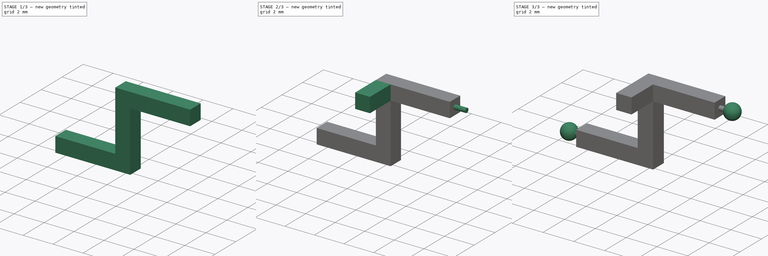
[diagram: build sequence overview — one tinted view per stage of 3, left to right]
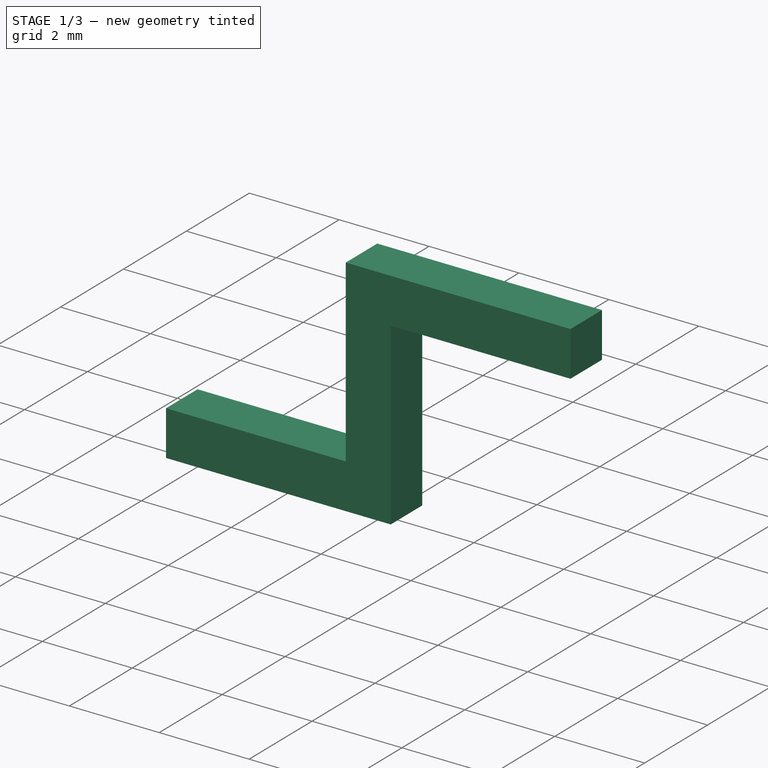
[diagram: stage 1 of 3 — iso view after this stage's code; geometry added in this stage tinted green]
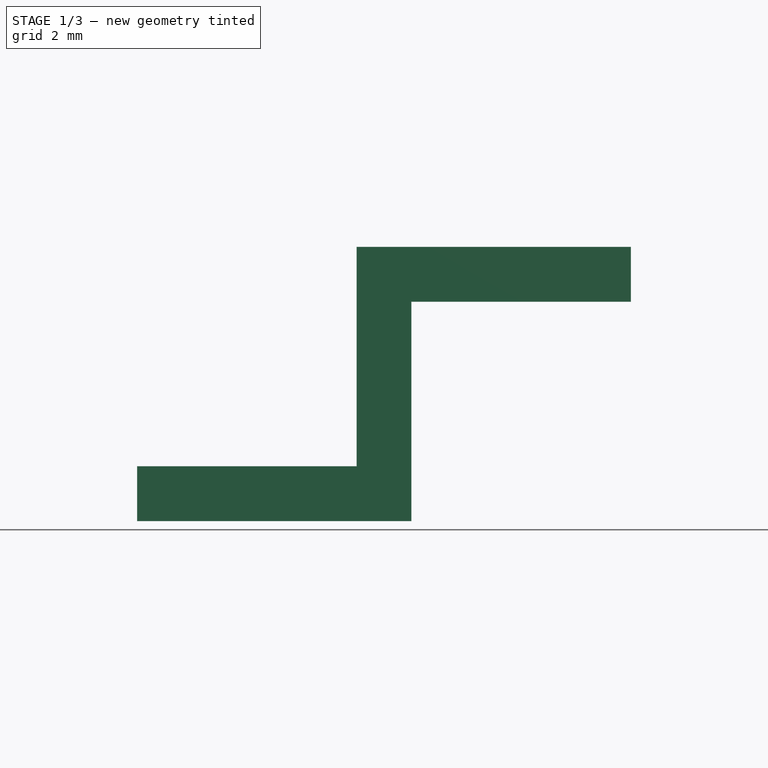
[diagram: stage 1 of 3 — front view after this stage's code; geometry added in this stage tinted green]
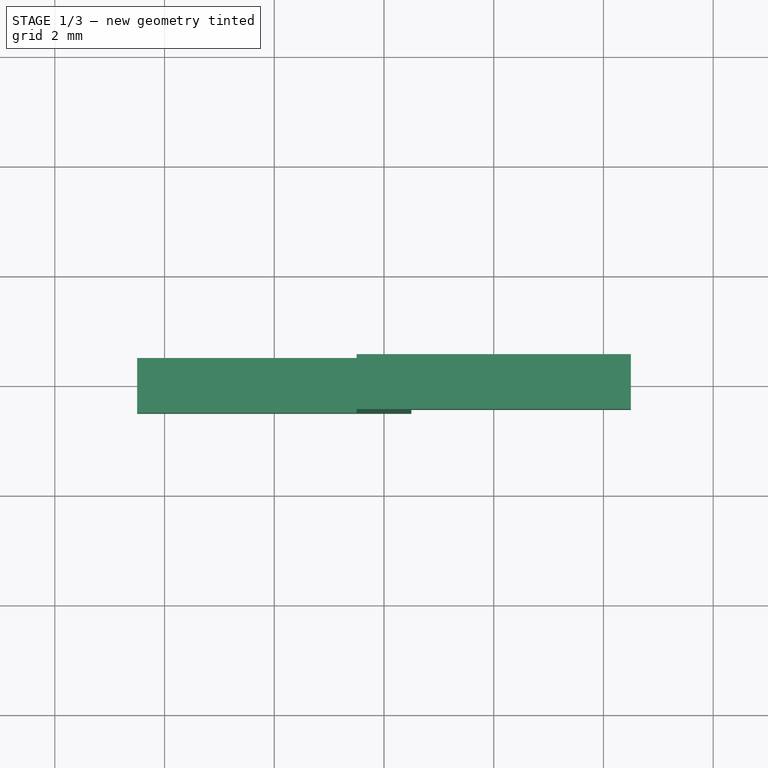
[diagram: stage 1 of 3 — top view after this stage's code; geometry added in this stage tinted green]
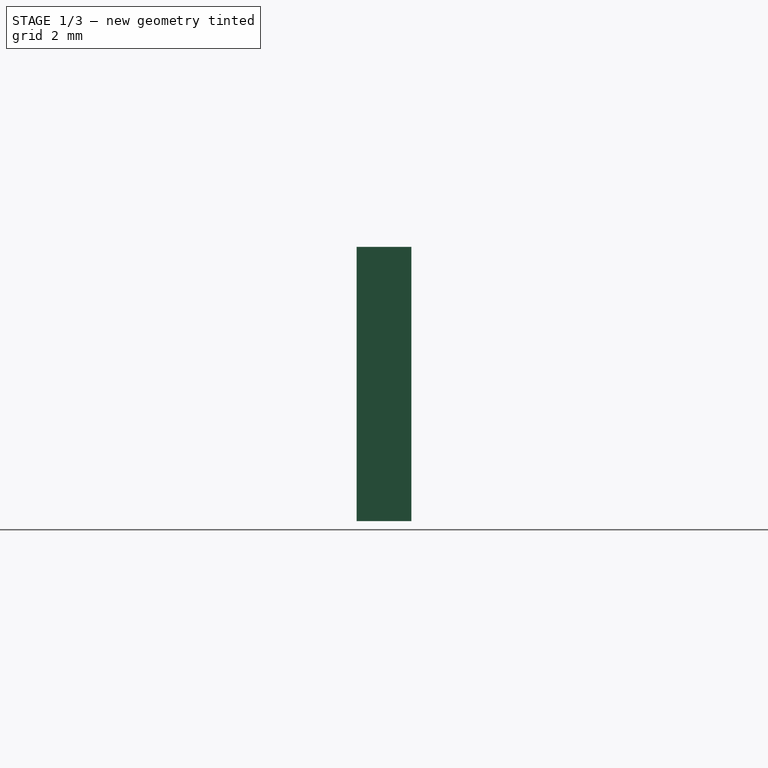
[diagram: stage 1 of 3 — right view after this stage's code; geometry added in this stage tinted green]
FCSTD DOCUMENT  (FreeCAD 0.20R29177 (Git))
Label: ax1
License: All rights reserved
LicenseURL: http://en.wikipedia.org/wiki/All_rights_reserved
objects: Sketcher::SketchObject×8, PartDesign::Pad×4, PartDesign::Revolution×4, PartDesign::Line×2, Spreadsheet::Sheet×1, PartDesign::Plane×1, PartDesign::Body×1
note: 28 computed .brp shape members not serialized (recipe doc carries the construction recipe); baked Part::Feature solids carry a one-line shape summary decoded from their .brp

FEATURE [Spreadsheet::Sheet] Spreadsheet
  cells = A2=Design Parameters; A3=RefLength; B3(RefLength)==1mm; A4=RightArmLength; B4(RightArmLength)==5 * RefLength; A5=LeftArmLength; B5(LeftArmLength)==5 * RefLength; A6=VerticalArmLength; B6(VerticalArmLength)==5 * RefLength; A7=FrontArmLength; B7(FrontArmLength)==3 * RefLength; A8=BeamWidth; B8(BeamWidth)==1 * RefLength; A9=BeamHeight; B9(BeamHeight)==1 * RefLength; A10=LeftArmDatumPlaneZOffset; B10(LeftArmDatumPlaneZOffset)==VerticalArmLength - BeamHeight; A11=BallJointDiam; B11(BallJointDiam)==1 * RefLength; A12=BallJointConnDiam; B12(BallJointConnDiam)==0.3 * RefLength; A13=BallJointConnLength; B13(BallJointConnLength)==0.3 * RefLength; A14=BallJointConnPadLength; B14(BallJointConnPadLength)==BallJointConnLength + 0.5 * BallJointDiam; A15=RightArmBallJointConnXOffset; B15(RightArmBallJointConnXOffset)==RightArmLength - 0.5 * BeamHeight; A16=RightArmBallJointXOffset; B16(RightArmBallJointXOffset)==RightArmLength - 0.5 * BeamHeight + BallJointConnLength + 0.5 * BallJointDiam; A17=LeftArmBallJointConnXOffset; B17(LeftArmBallJointConnXOffset)==LeftArmLength - 0.5 * BeamHeight; A18=LeftArmBallJointXOffset; B18(LeftArmBallJointXOffset)==LeftArmLength - 0.5 * BeamHeight + BallJointConnLength + 0.5 * BallJointDiam; A19=EdgeFilletRadius; B19(EdgeFilletRadius)==0.15 * RefLength; A20=BallJointConnFilletRadius; B20(BallJointConnFilletRadius)==0.1 * RefLength
FEATURE [Sketcher::SketchObject] Sketch  label="RightArmSketch"
  FullyConstrained = true
  MapMode = 5
  Support = -> [XY_Plane]
  expr: Constraints[14] = Spreadsheet.RightArmLength
  expr: Constraints[15] = Spreadsheet.BeamWidth
  expr: Constraints[16] = Spreadsheet.BeamHeight
  sketch-geometry (6):
    g0: LineSegment StartX=0.5 StartY=0.5 StartZ=0 EndX=4.5 EndY=0.5 EndZ=0
    g1: LineSegment StartX=4.5 StartY=0.5 StartZ=0 EndX=4.5 EndY=-0.5 EndZ=0
    g2: LineSegment StartX=4.5 StartY=-0.5 StartZ=0 EndX=0.5 EndY=-0.5 EndZ=0
    g3: LineSegment StartX=-0.5 StartY=0.5 StartZ=0 EndX=0.5 EndY=0.5 EndZ=0
    g4: LineSegment StartX=0.5 StartY=-0.5 StartZ=0 EndX=-0.5 EndY=-0.5 EndZ=0
    g5: LineSegment StartX=-0.5 StartY=-0.5 StartZ=0 EndX=-0.5 EndY=0.5 EndZ=0
  constraints (17):
    c: Coincident(g0,g1)
    c: Coincident(g1,g2)
    c: Horizontal(g0)
    c: Horizontal(g2)
    c: Vertical(g1)
    c: Coincident(g4,g5)
    c: Coincident(g5,g3)
    c: Horizontal(g3)
    c: Horizontal(g4)
    c: Vertical(g5)
    c: Coincident(g3,g0)
    c: Coincident(g4,g2)
    c: Equal(g3,g4)
    c: Symmetric(g3,g2,g-1)
    c: DistanceX(g3,g0) = 5
    c: DistanceY(g1,g1) = 1
    c: DistanceX(g4,g4) = 1
FEATURE [PartDesign::Pad] Pad  label="RightArmPad"
  Direction = (0,0,1)
  Length = 1
  Length2 = 10
  Midplane = true
  Profile = -> Sketch
  ReferenceAxis = -> Sketch [N_Axis]
  Type = 0
  expr: Length = Spreadsheet.BeamHeight
FEATURE [Sketcher::SketchObject] Sketch001  label="VerticalArmSketch"
  FullyConstrained = true
  MapMode = 5
  Placement = pos=(0,0,0) rot=(0.57735,0.57735,0.57735;2.0944rad)
  Support = -> [YZ_Plane]
  expr: Constraints[14] = Spreadsheet.BeamWidth
  expr: Constraints[15] = Spreadsheet.BeamHeight
  expr: Constraints[16] = Spreadsheet.VerticalArmLength
  sketch-geometry (6):
    g0: LineSegment StartX=-0.5 StartY=0.5 StartZ=0 EndX=0.5 EndY=0.5 EndZ=0
    g1: LineSegment StartX=0.5 StartY=0.5 StartZ=0 EndX=0.5 EndY=-0.5 EndZ=0
    g2: LineSegment StartX=-0.5 StartY=-0.5 StartZ=0 EndX=-0.5 EndY=0.5 EndZ=0
    g3: LineSegment StartX=0.5 StartY=-0.5 StartZ=0 EndX=0.5 EndY=-4.5 EndZ=0
    g4: LineSegment StartX=0.5 StartY=-4.5 StartZ=0 EndX=-0.5 EndY=-4.5 EndZ=0
    g5: LineSegment StartX=-0.5 StartY=-4.5 StartZ=0 EndX=-0.5 EndY=-0.5 EndZ=0
  constraints (17):
    c: Coincident(g0,g1)
    c: Coincident(g2,g0)
    c: Horizontal(g0)
    c: Vertical(g1)
    c: Vertical(g2)
    c: Coincident(g3,g4)
    c: Coincident(g4,g5)
    c: Horizontal(g4)
    c: Vertical(g3)
    c: Vertical(g5)
    c: Coincident(g2,g5)
    c: Coincident(g1,g3)
    c: Equal(g2,g1)
    c: Symmetric(g0,g1,g-1)
    c: DistanceX(g0,g0) = 1
    c: DistanceY(g1,g1) = 1
    c: DistanceY(g4,g0) = 5
FEATURE [PartDesign::Pad] Pad001  label="VerticalArmPad"
  BaseFeature = -> Pad
  Direction = (1,-2e-16,3e-16)
  Length = 1
  Length2 = 10
  Midplane = true
  Profile = -> Sketch001
  ReferenceAxis = -> Sketch001 [N_Axis]
  Type = 0
  expr: Length = Spreadsheet.BeamHeight
FEATURE [PartDesign::Plane] DatumPlane  label="LeftArmDatumPlane"
  AttachmentOffset = pos=(0,0,-4) rot=(0,0,1;0rad)
  Length = 60
  MapMode = 5
  Placement = pos=(0,0,-4) rot=(0,0,1;0rad)
  ResizeMode = 0
  Support = -> [XY_Plane]
  Width = 60
  expr: .AttachmentOffset.Base.z = -Spreadsheet.LeftArmDatumPlaneZOffset
FEATURE [Sketcher::SketchObject] Sketch002  label="LeftArmSketch"
  FullyConstrained = true
  MapMode = 5
  Placement = pos=(0,0,-4) rot=(0,0,1;0rad)
  Support = -> [DatumPlane]
  expr: Constraints[14] = Spreadsheet.BeamWidth
  expr: Constraints[15] = Spreadsheet.BeamHeight
  expr: Constraints[16] = Spreadsheet.LeftArmLength
  sketch-geometry (6):
    g0: LineSegment StartX=-4.5 StartY=0.5 StartZ=0 EndX=-0.5 EndY=0.5 EndZ=0
    g1: LineSegment StartX=-0.5 StartY=-0.5 StartZ=0 EndX=-4.5 EndY=-0.5 EndZ=0
    g2: LineSegment StartX=-4.5 StartY=-0.5 StartZ=0 EndX=-4.5 EndY=0.5 EndZ=0
    g3: LineSegment StartX=-0.5 StartY=0.5 StartZ=0 EndX=0.5 EndY=0.5 EndZ=0
    g4: LineSegment StartX=0.5 StartY=0.5 StartZ=0 EndX=0.5 EndY=-0.5 EndZ=0
    g5: LineSegment StartX=0.5 StartY=-0.5 StartZ=0 EndX=-0.5 EndY=-0.5 EndZ=0
  constraints (17):
    c: Coincident(g1,g2)
    c: Coincident(g2,g0)
    c: Horizontal(g0)
    c: Horizontal(g1)
    c: Vertical(g2)
    c: Coincident(g3,g4)
    c: Coincident(g4,g5)
    c: Horizontal(g3)
    c: Horizontal(g5)
    c: Vertical(g4)
    c: Coincident(g0,g3)
    c: Coincident(g5,g1)
    c: Symmetric(g0,g4,g-1)
    c: Equal(g5,g3)
    c: DistanceY(g4,g4) = 1
    c: DistanceX(g5,g5) = 1
    c: DistanceX(g1,g4) = 5
FEATURE [PartDesign::Pad] Pad002  label="LeftArmPad"
  BaseFeature = -> Pad001
  Direction = (0,0,1)
  Length = 1
  Length2 = 10
  Midplane = true
  Profile = -> Sketch002
  ReferenceAxis = -> Sketch002 [N_Axis]
  Type = 0
  expr: Length = Spreadsheet.BeamHeight
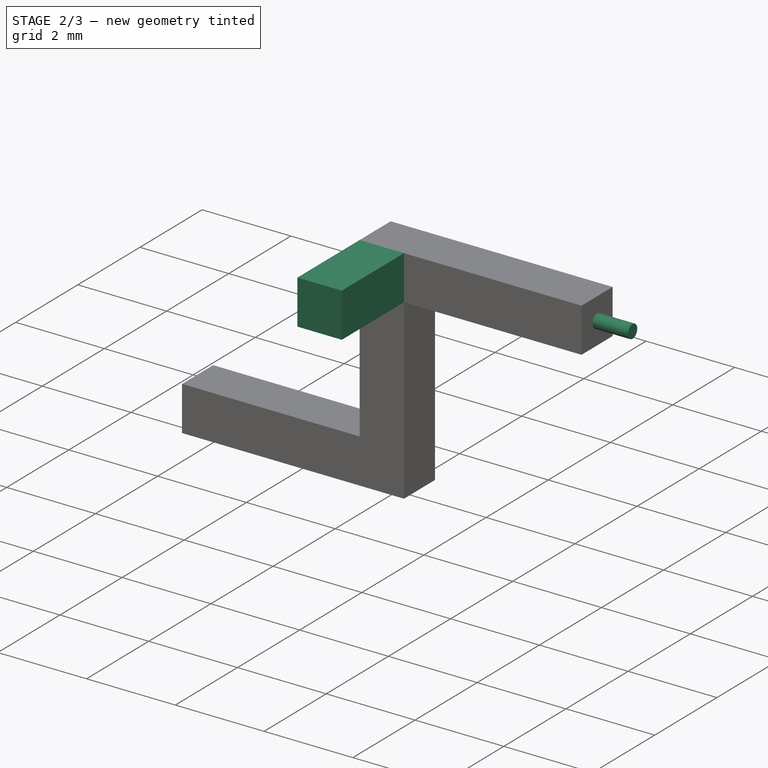
[diagram: stage 2 of 3 — iso view after this stage's code; geometry added in this stage tinted green]
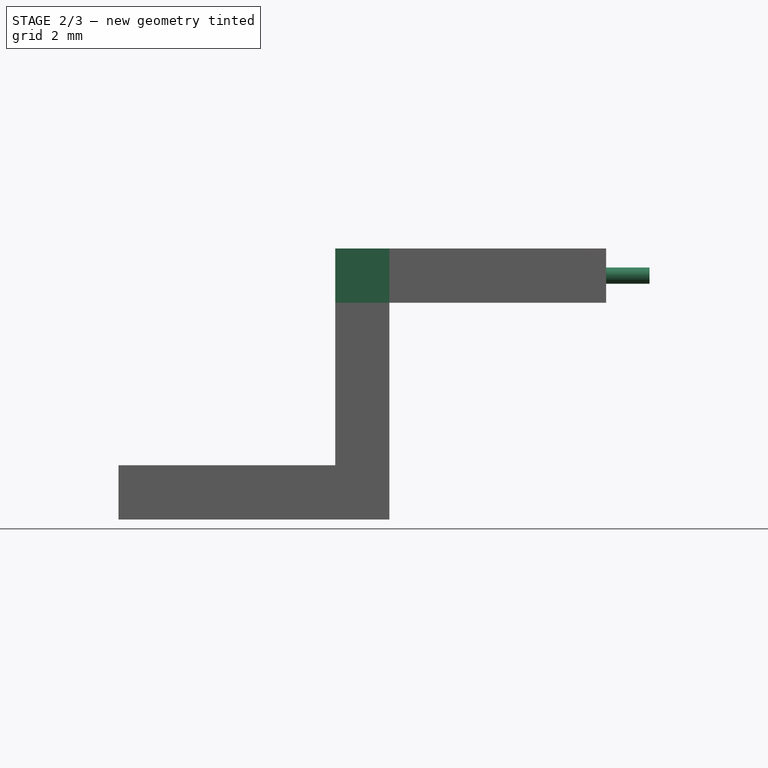
[diagram: stage 2 of 3 — front view after this stage's code; geometry added in this stage tinted green]
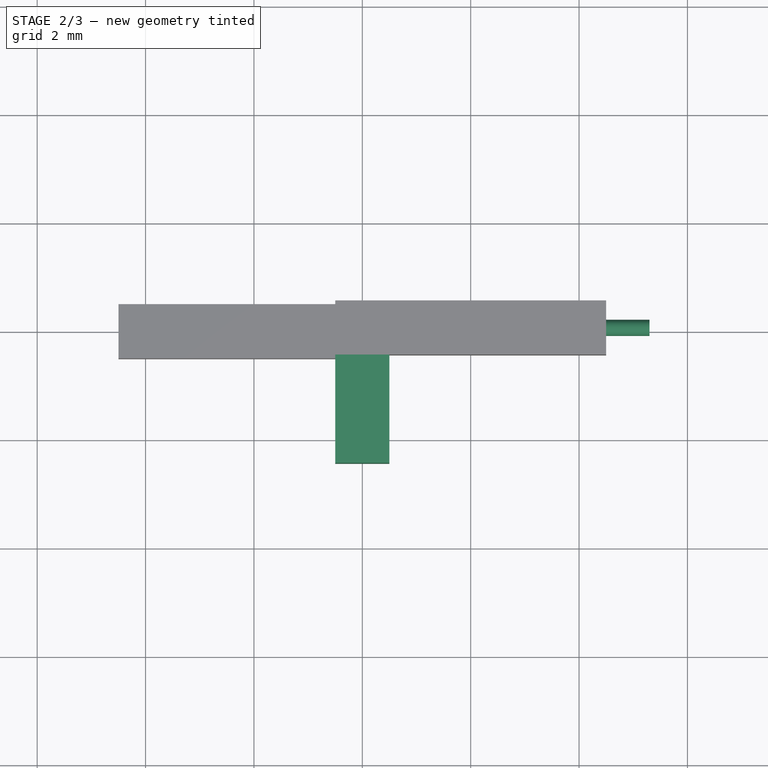
[diagram: stage 2 of 3 — top view after this stage's code; geometry added in this stage tinted green]
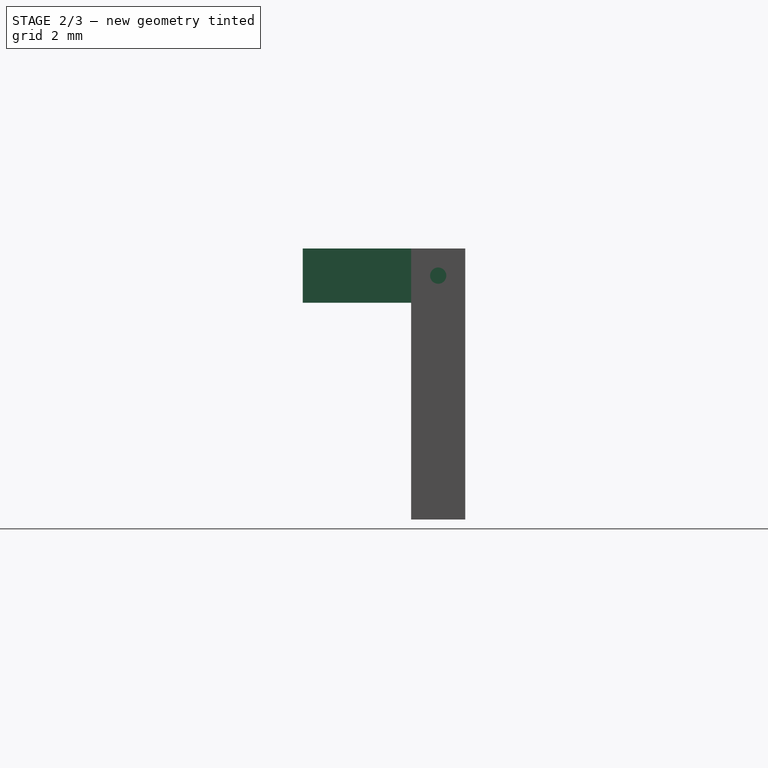
[diagram: stage 2 of 3 — right view after this stage's code; geometry added in this stage tinted green]
FEATURE [Sketcher::SketchObject] Sketch003  label="FrontArmSketch"
  FullyConstrained = true
  MapMode = 5
  Support = -> [XY_Plane]
  expr: Constraints[14] = Spreadsheet.BeamHeight
  expr: Constraints[15] = Spreadsheet.BeamWidth
  expr: Constraints[16] = Spreadsheet.FrontArmLength
  sketch-geometry (6):
    g0: LineSegment StartX=-0.5 StartY=0.5 StartZ=0 EndX=0.5 EndY=0.5 EndZ=0
    g1: LineSegment StartX=0.5 StartY=0.5 StartZ=0 EndX=0.5 EndY=-0.5 EndZ=0
    g2: LineSegment StartX=-0.5 StartY=-0.5 StartZ=0 EndX=-0.5 EndY=0.5 EndZ=0
    g3: LineSegment StartX=0.5 StartY=-0.5 StartZ=0 EndX=0.5 EndY=-2.5 EndZ=0
    g4: LineSegment StartX=0.5 StartY=-2.5 StartZ=0 EndX=-0.5 EndY=-2.5 EndZ=0
    g5: LineSegment StartX=-0.5 StartY=-2.5 StartZ=0 EndX=-0.5 EndY=-0.5 EndZ=0
  constraints (17):
    c: Coincident(g0,g1)
    c: Coincident(g2,g0)
    c: Horizontal(g0)
    c: Vertical(g1)
    c: Vertical(g2)
    c: Coincident(g3,g4)
    c: Coincident(g4,g5)
    c: Horizontal(g4)
    c: Vertical(g3)
    c: Vertical(g5)
    c: Equal(g2,g1)
    c: Coincident(g2,g5)
    c: Coincident(g3,g1)
    c: Symmetric(g0,g1,g-1)
    c: DistanceX(g0,g0) = 1
    c: DistanceY(g1,g1) = 1
    c: DistanceY(g4,g0) = 3
FEATURE [PartDesign::Pad] Pad003  label="FrontArmPad"
  BaseFeature = -> Pad002
  Direction = (0,0,1)
  Length = 1
  Length2 = 10
  Midplane = true
  Profile = -> Sketch003
  ReferenceAxis = -> Sketch003 [N_Axis]
  Type = 0
  expr: Length = Spreadsheet.BeamHeight
FEATURE [Sketcher::SketchObject] Sketch004  label="RightArmBallJointConnSketch"
  FullyConstrained = true
  MapMode = 5
  Support = -> [XY_Plane]
  expr: Constraints[11] = Spreadsheet.BallJointConnDiam * 0.5
  expr: Constraints[12] = Spreadsheet.BallJointConnPadLength
  expr: Constraints[13] = Spreadsheet.RightArmBallJointConnXOffset
  sketch-geometry (5):
    g0: LineSegment StartX=4.5 StartY=0.15 StartZ=0 EndX=5.3 EndY=0.15 EndZ=0
    g1: LineSegment StartX=5.3 StartY=0.15 StartZ=0 EndX=5.3 EndY=0 EndZ=0
    g2: LineSegment StartX=5.3 StartY=0 StartZ=0 EndX=4.5 EndY=0 EndZ=0
    g3: LineSegment StartX=4.5 StartY=0 StartZ=0 EndX=4.5 EndY=0.15 EndZ=0
    g4: LineSegment StartX=0 StartY=0 StartZ=0 EndX=4.5 EndY=0 EndZ=0
  constraints (14):
    c: Coincident(g0,g1)
    c: Coincident(g1,g2)
    c: Coincident(g2,g3)
    c: Coincident(g3,g0)
    c: Horizontal(g0)
    c: Horizontal(g2)
    c: Vertical(g1)
    c: Vertical(g3)
    c: Horizontal(g4)
    c: Coincident(g-1,g4)
    c: Coincident(g4,g2)
    c: DistanceY(g1,g1) = 0.15
    c: DistanceX(g2,g2) = 0.8
    c: DistanceX(g4,g4) = 4.5
FEATURE [PartDesign::Line] DatumLine  label="RightArmBallJointDatumLine"
  AttacherType = Attacher::AttachEngineLine
  Length = 20
  MapMode = 29
  Placement = pos=(0,0,0) rot=(0.57735,-0.57735,-0.57735;2.0944rad)
  ResizeMode = 0
  Support = -> [Sketch004]
FEATURE [PartDesign::Revolution] Revolution  label="RightArmBallJointConnRevolution"
  Angle = 360
  Axis = (-1,0,0)
  Base = (0,0,0)
  BaseFeature = -> Pad003
  Profile = -> Sketch004
  ReferenceAxis = -> DatumLine
  Reversed = true
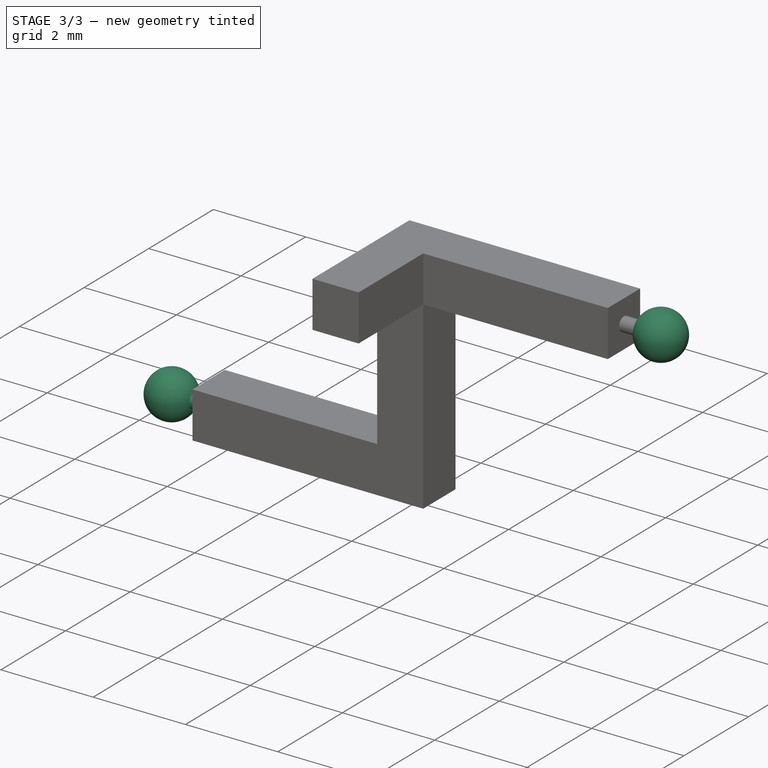
[diagram: stage 3 of 3 — iso view after this stage's code; geometry added in this stage tinted green]
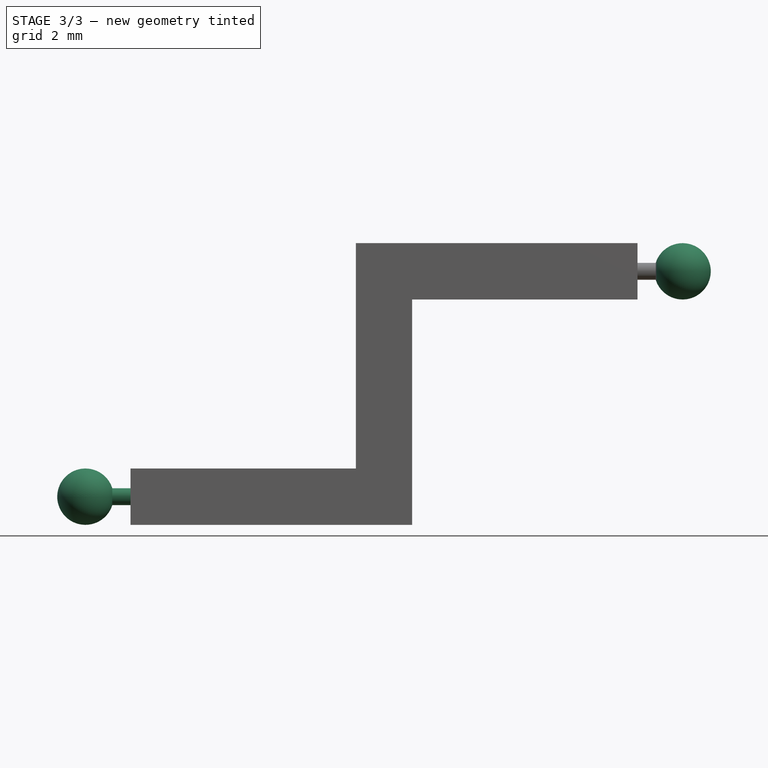
[diagram: stage 3 of 3 — front view after this stage's code; geometry added in this stage tinted green]
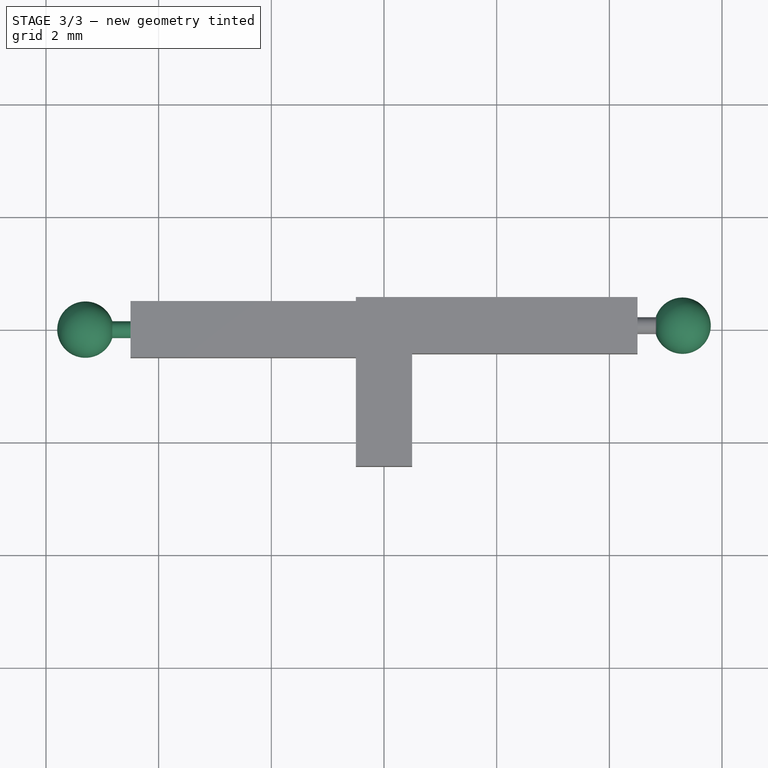
[diagram: stage 3 of 3 — top view after this stage's code; geometry added in this stage tinted green]
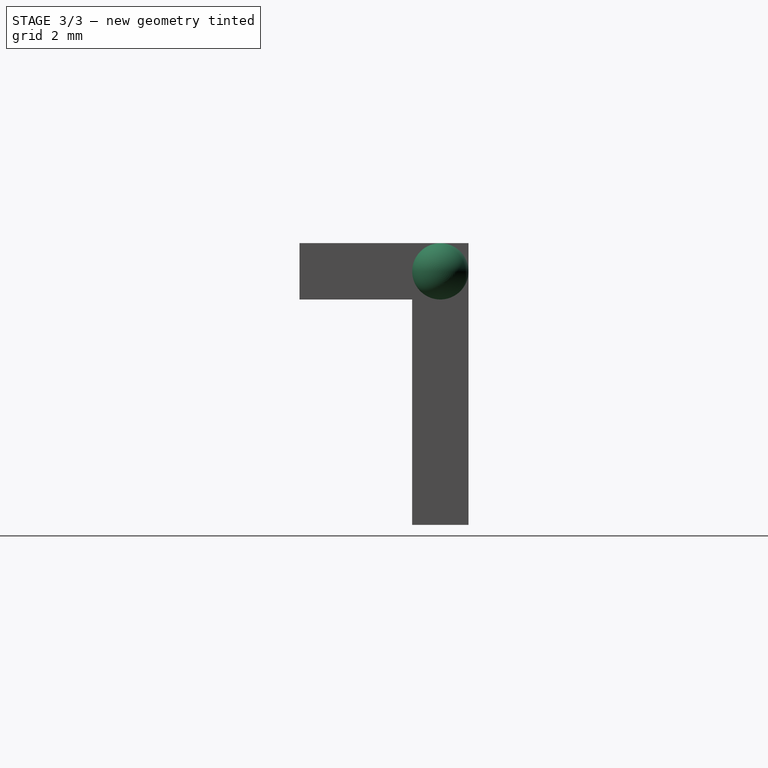
[diagram: stage 3 of 3 — right view after this stage's code; geometry added in this stage tinted green]
FEATURE [Sketcher::SketchObject] Sketch005  label="RightArmBallJointSketch"
  FullyConstrained = true
  MapMode = 5
  Support = -> [XY_Plane]
  expr: Constraints[10] = Spreadsheet.RightArmBallJointXOffset
  expr: Constraints[9] = Spreadsheet.BallJointDiam
  sketch-geometry (4):
    g0: LineSegment StartX=0 StartY=0 StartZ=0 EndX=5.3 EndY=0 EndZ=0
    g1: ArcOfCircle CenterX=5.3 CenterY=0 CenterZ=0 NormalX=0 NormalY=0 NormalZ=1 AngleXU=0 Radius=0.5 StartAngle=0 EndAngle=3.14159
    g2: LineSegment StartX=4.8 StartY=1e-16 StartZ=0 EndX=5.3 EndY=0 EndZ=0
    g3: LineSegment StartX=5.3 StartY=0 StartZ=0 EndX=5.8 EndY=0 EndZ=0
  constraints (11):
    c: Horizontal(g0)
    c: Coincident(g-1,g0)
    c: Coincident(g1,g0)
    c: Coincident(g1,g2)
    c: PointOnObject(g1,g0)
    c: Coincident(g2,g1)
    c: Coincident(g3,g1)
    c: Coincident(g1,g3)
    c: PointOnObject(g1,g-1)
    c: Diameter(g1) = 1
    c: DistanceX(g0,g0) = 5.3
FEATURE [PartDesign::Revolution] Revolution001  label="RightArmBallJointRevolution"
  Angle = 360
  Axis = (1,0,0)
  Base = (0,0,0)
  BaseFeature = -> Revolution
  Profile = -> Sketch005
  ReferenceAxis = -> X_Axis
  Reversed = true
FEATURE [Sketcher::SketchObject] Sketch006  label="LeftArmBallJointConnSketch"
  FullyConstrained = true
  MapMode = 5
  Placement = pos=(0,0,-4) rot=(0,0,1;0rad)
  Support = -> [DatumPlane]
  expr: Constraints[11] = Spreadsheet.BallJointConnDiam * 0.5
  expr: Constraints[12] = Spreadsheet.LeftArmBallJointConnXOffset
  expr: Constraints[13] = Spreadsheet.BallJointConnPadLength
  sketch-geometry (5):
    g0: LineSegment StartX=-4.5 StartY=0 StartZ=0 EndX=0 EndY=0 EndZ=0
    g1: LineSegment StartX=-5.3 StartY=0.15 StartZ=0 EndX=-4.5 EndY=0.15 EndZ=0
    g2: LineSegment StartX=-4.5 StartY=0.15 StartZ=0 EndX=-4.5 EndY=0 EndZ=0
    g3: LineSegment StartX=-4.5 StartY=0 StartZ=0 EndX=-5.3 EndY=0 EndZ=0
    g4: LineSegment StartX=-5.3 StartY=0 StartZ=0 EndX=-5.3 EndY=0.15 EndZ=0
  constraints (14):
    c: Horizontal(g0)
    c: Coincident(g0,g-1)
    c: Coincident(g1,g2)
    c: Coincident(g2,g3)
    c: Coincident(g3,g4)
    c: Coincident(g4,g1)
    c: Horizontal(g1)
    c: Horizontal(g3)
    c: Vertical(g2)
    c: Vertical(g4)
    c: Coincident(g2,g0)
    c: DistanceY(g4,g4) = 0.15
    c: DistanceX(g0,g0) = 4.5
    c: DistanceX(g3,g3) = 0.8
FEATURE [PartDesign::Line] DatumLine001  label="LeftArmBallJointDatumLine"
  AttacherType = Attacher::AttachEngineLine
  Length = 20
  MapMode = 16
  Placement = pos=(0,0,-4) rot=(0.57735,0.57735,0.57735;2.0944rad)
  ResizeMode = 0
  Support = -> [Sketch006]
FEATURE [PartDesign::Revolution] Revolution002  label="LeftArmBallJointConnRevolution"
  Angle = 360
  Axis = (1,0,0)
  Base = (0,0,-4)
  BaseFeature = -> Revolution001
  Profile = -> Sketch006
  ReferenceAxis = -> DatumLine001
FEATURE [Sketcher::SketchObject] Sketch007  label="LeftArmBallJointSketch"
  FullyConstrained = true
  MapMode = 5
  Placement = pos=(0,0,-4) rot=(0,0,1;0rad)
  Support = -> [DatumPlane]
  expr: Constraints[10] = Spreadsheet.BallJointDiam
  expr: Constraints[2] = Spreadsheet.LeftArmBallJointXOffset
  sketch-geometry (4):
    g0: LineSegment StartX=-5.3 StartY=0 StartZ=0 EndX=0 EndY=0 EndZ=0
    g1: ArcOfCircle CenterX=-5.3 CenterY=0 CenterZ=0 NormalX=0 NormalY=0 NormalZ=1 AngleXU=0 Radius=0.5 StartAngle=3.14159 EndAngle=6.28319
    g2: LineSegment StartX=-5.8 StartY=1e-16 StartZ=0 EndX=-5.3 EndY=0 EndZ=0
    g3: LineSegment StartX=-5.3 StartY=0 StartZ=0 EndX=-4.8 EndY=-1e-16 EndZ=0
  constraints (11):
    c: Horizontal(g0)
    c: Coincident(g0,g-1)
    c: DistanceX(g0,g0) = 5.3
    c: Coincident(g0,g1)
    c: Coincident(g2,g1)
    c: Coincident(g1,g3)
    c: Coincident(g1,g2)
    c: Coincident(g3,g1)
    c: PointOnObject(g1,g0)
    c: PointOnObject(g1,g-1)
    c: Diameter(g1) = 1
FEATURE [PartDesign::Revolution] Revolution003  label="LeftArmBallJointRevolution"
  Angle = 360
  Axis = (1,0,0)
  Base = (0,0,-4)
  BaseFeature = -> Revolution002
  Profile = -> Sketch007
  ReferenceAxis = -> DatumLine001
FEATURE [PartDesign::Body] Body
  Group = -> [Sketch,Pad,Sketch001,Pad001,DatumPlane,Sketch002,Pad002,Sketch003,Pad003,Sketch004,DatumLine,Revolution,Sketch005,Revolution001,Sketch006,DatumLine001,Revolution002,Sketch007,Revolution003]
  Origin = -> Origin
  Tip = -> Revolution003
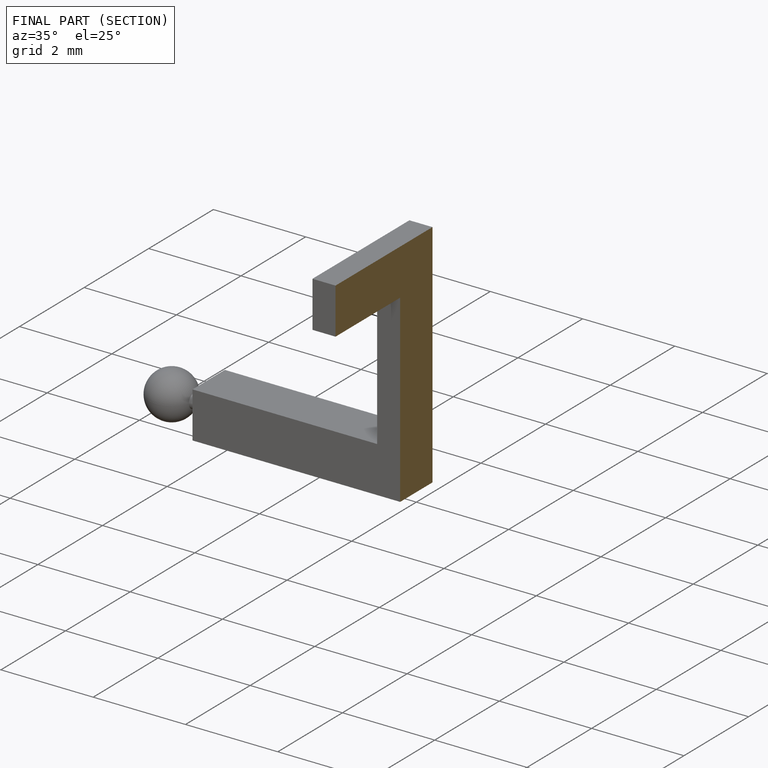
[diagram: finished part — half-section view (interior)]
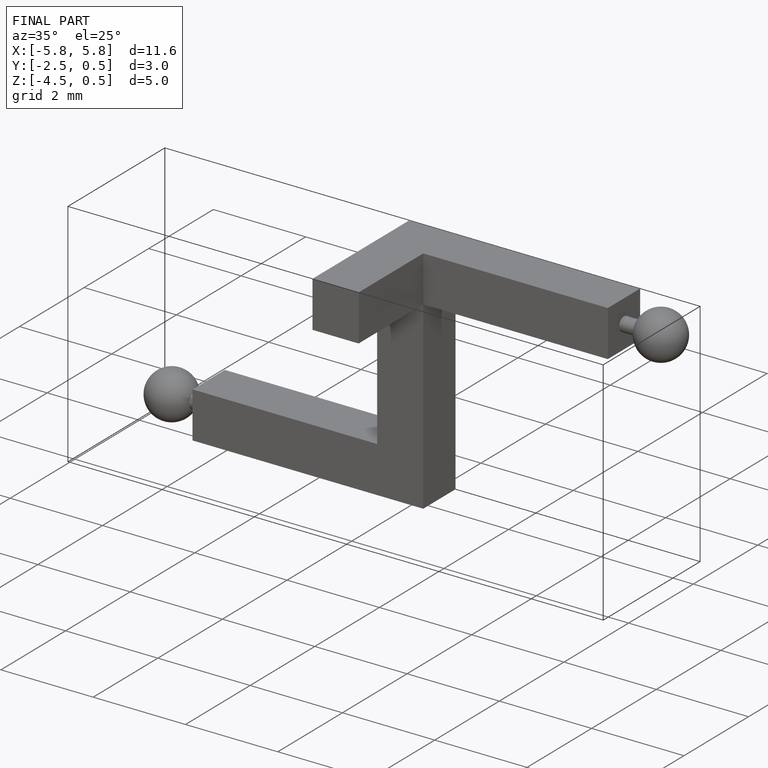
[diagram: finished part — iso view with bounding-box wireframe]
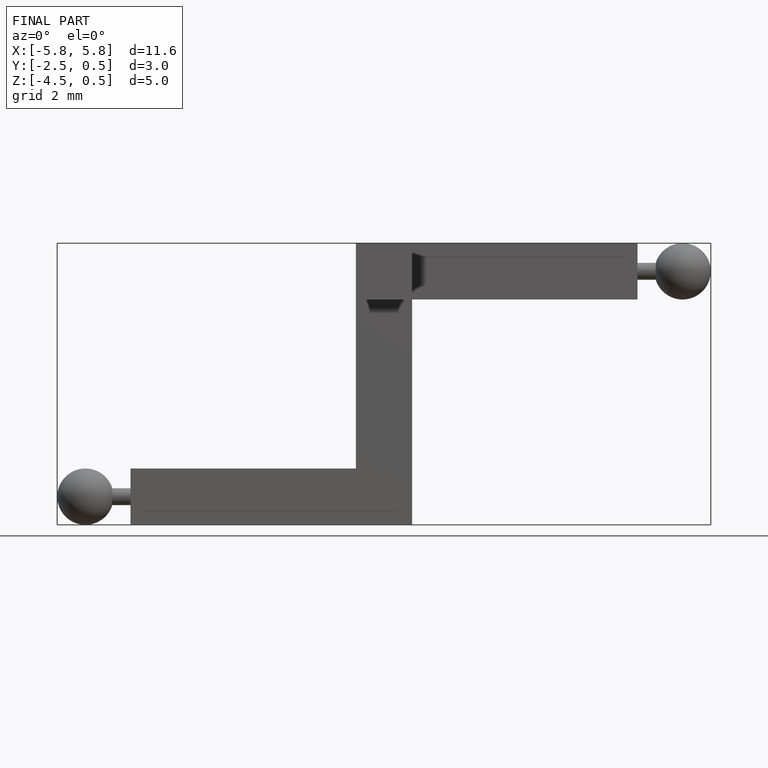
[diagram: finished part — front view with bounding-box wireframe]
